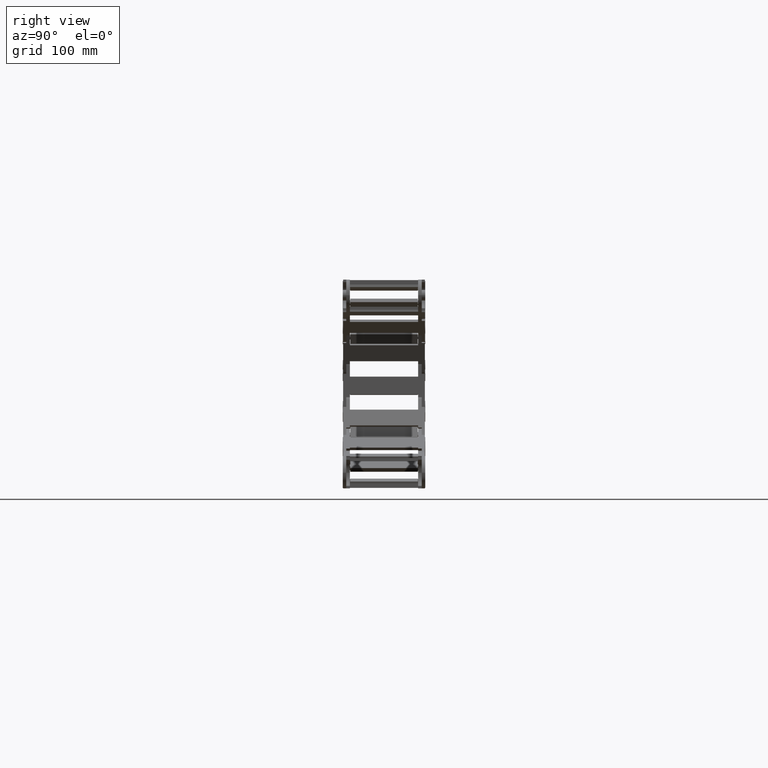
[diagram: clean part render]
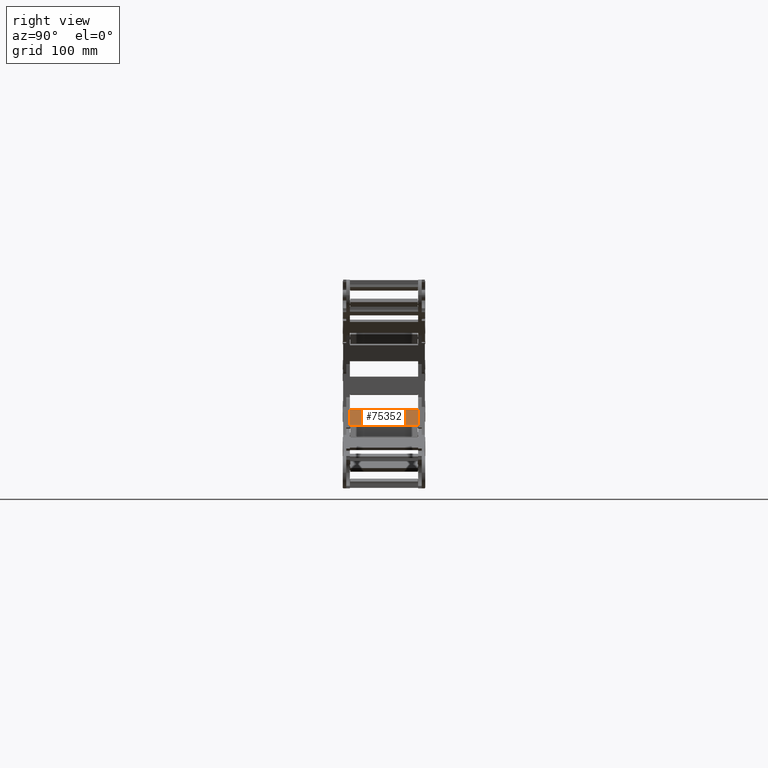
[diagram: same view with one face highlighted and labeled with its STEP entity id]
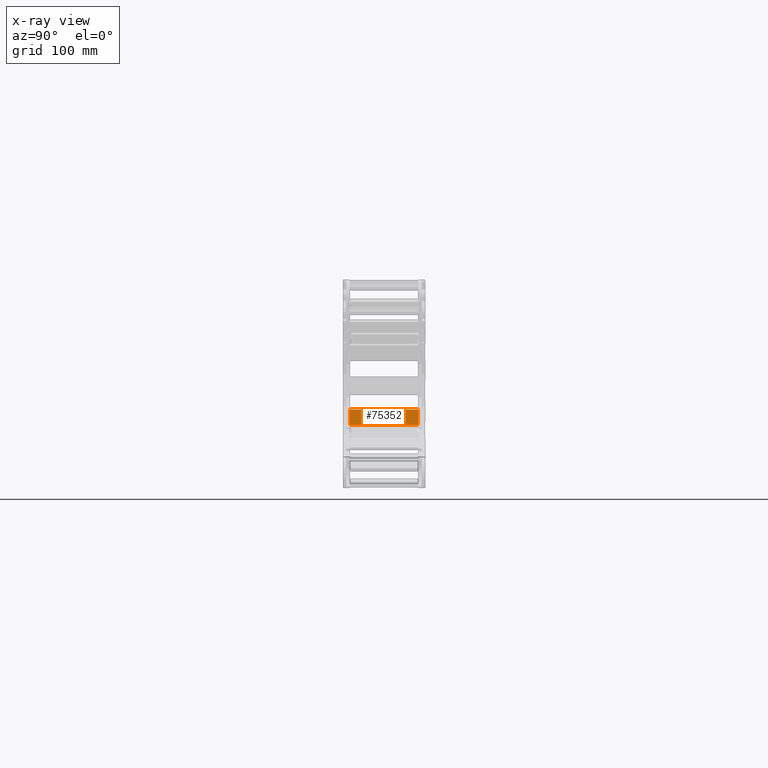
[diagram: x-ray of the same camera — body ghosted, the highlighted face saturated]
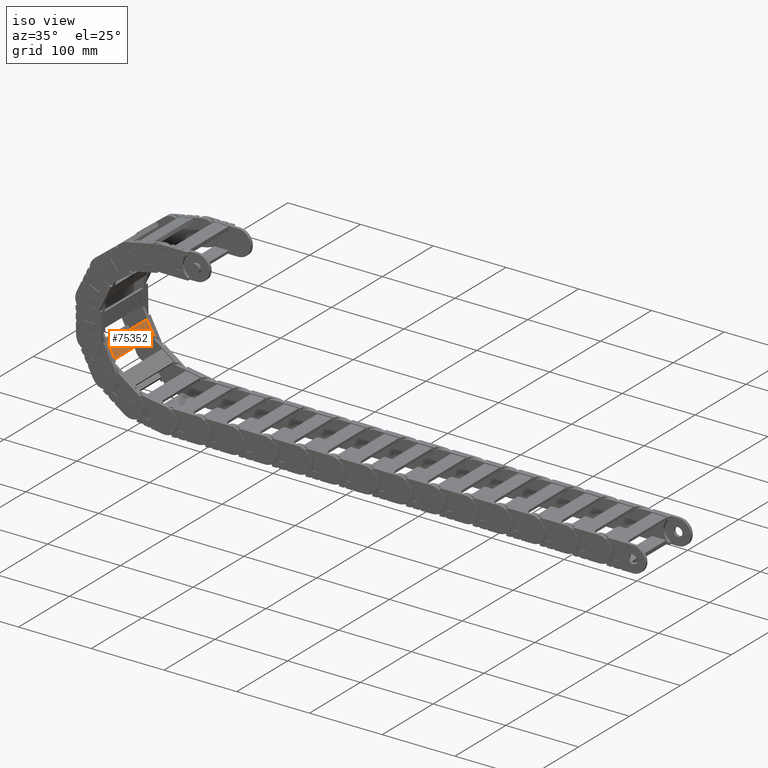
[diagram: same view with one face highlighted and labeled with its STEP entity id]
A machine part, right view. The second image highlights one B-rep face of the part: STEP entity #75352.
The next image is the same camera in x-ray: the body ghosted, the highlighted face saturated — about 0% of this face is hidden behind the body in this view.
A second angle (iso view) of the same face is appended — the face is thin or edge-on in the first view.
In plain terms, the highlighted planar face has unit normal (-0.8851, 0, -0.4655).
Its self-contained STEP definition (entity closure, byte-faithful):
#423 = VERTEX_POINT ( 'NONE', #63321 ) ;
#5431 = DIRECTION ( 'NONE',  ( 0.000000000000000000, 1.000000000000000000, 0.000000000000000000 ) ) ;
#8329 = DIRECTION ( 'NONE',  ( -0.4654586112737118531, 0.000000000000000000, 0.8850696476499166909 ) ) ;
#8345 = VECTOR ( 'NONE', #8329, 39.37007874015747433 ) ;
#9642 = CARTESIAN_POINT ( 'NONE',  ( -28.27974683087401786, 1.515826771653543403, 2.101496294909449336 ) ) ;
#15274 = DIRECTION ( 'NONE',  ( -0.4654586112737117976, 0.000000000000000000, 0.8850696476499165799 ) ) ;
#15489 = DIRECTION ( 'NONE',  ( 0.000000000000000000, 1.000000000000000000, 0.000000000000000000 ) ) ;
#16968 = VECTOR ( 'NONE', #5431, 39.37007874015748143 ) ;
#19039 = ORIENTED_EDGE ( 'NONE', *, *, #67243, .T. ) ;
#21724 = LINE ( 'NONE', #9642, #35052 ) ;
#22954 = LINE ( 'NONE', #25548, #16968 ) ;
#23478 = EDGE_CURVE ( 'NONE', #423, #25254, #74103, .T. ) ;
#25254 = VERTEX_POINT ( 'NONE', #59838 ) ;
#25548 = CARTESIAN_POINT ( 'NONE',  ( -28.64624967439661418, 1.515826771653543403, 2.798401529279460398 ) ) ;
#26148 = DIRECTION ( 'NONE',  ( -0.4654586112737118531, 0.000000000000000000, 0.8850696476499166909 ) ) ;
#27319 = FACE_OUTER_BOUND ( 'NONE', #41490, .T. ) ;
#28504 = CARTESIAN_POINT ( 'NONE',  ( -28.27974683087401786, 3.031496062992125928, 2.101496294909449336 ) ) ;
#31684 = VECTOR ( 'NONE', #26148, 39.37007874015747433 ) ;
#35052 = VECTOR ( 'NONE', #15489, 39.37007874015748143 ) ;
#37830 = CARTESIAN_POINT ( 'NONE',  ( -28.46299825263807293, 3.031496062992125928, 2.449948912099677134 ) ) ;
#38019 = EDGE_CURVE ( 'NONE', #25254, #38213, #22954, .T. ) ;
#38213 = VERTEX_POINT ( 'NONE', #63996 ) ;
#41490 = EDGE_LOOP ( 'NONE', ( #19039, #51794, #67909, #50905 ) ) ;
#44462 = EDGE_CURVE ( 'NONE', #423, #70286, #21724, .T. ) ;
#44839 = CARTESIAN_POINT ( 'NONE',  ( -28.46299825263531247, 1.515826771653543403, 2.449948912094456865 ) ) ;
#50905 = ORIENTED_EDGE ( 'NONE', *, *, #44462, .T. ) ;
#51794 = ORIENTED_EDGE ( 'NONE', *, *, #38019, .F. ) ;
#56477 = LINE ( 'NONE', #37830, #31684 ) ;
#59838 = CARTESIAN_POINT ( 'NONE',  ( -28.64624967439661418, 0.0001181102362199173305, 2.798401529279460398 ) ) ;
#63321 = CARTESIAN_POINT ( 'NONE',  ( -28.27974683087401786, 0.0001181102362199173305, 2.101496294909449336 ) ) ;
#63996 = CARTESIAN_POINT ( 'NONE',  ( -28.64624967439661418, 3.031496062992125928, 2.798401529279460398 ) ) ;
#67243 = EDGE_CURVE ( 'NONE', #70286, #38213, #56477, .T. ) ;
#67909 = ORIENTED_EDGE ( 'NONE', *, *, #23478, .F. ) ;
#68554 = DIRECTION ( 'NONE',  ( -0.8850696476499166909, 0.000000000000000000, -0.4654586112737118531 ) ) ;
#70286 = VERTEX_POINT ( 'NONE', #28504 ) ;
#73491 = AXIS2_PLACEMENT_3D ( 'NONE', #44839, #68554, #15274 ) ;
#74103 = LINE ( 'NONE', #74479, #8345 ) ;
#74422 = PLANE ( 'NONE',  #73491 ) ;
#74479 = CARTESIAN_POINT ( 'NONE',  ( -28.46299825263531247, 0.0001181102362199173305, 2.449948912094456865 ) ) ;
#75352 = ADVANCED_FACE ( 'NONE', ( #27319 ), #74422, .F. ) ;